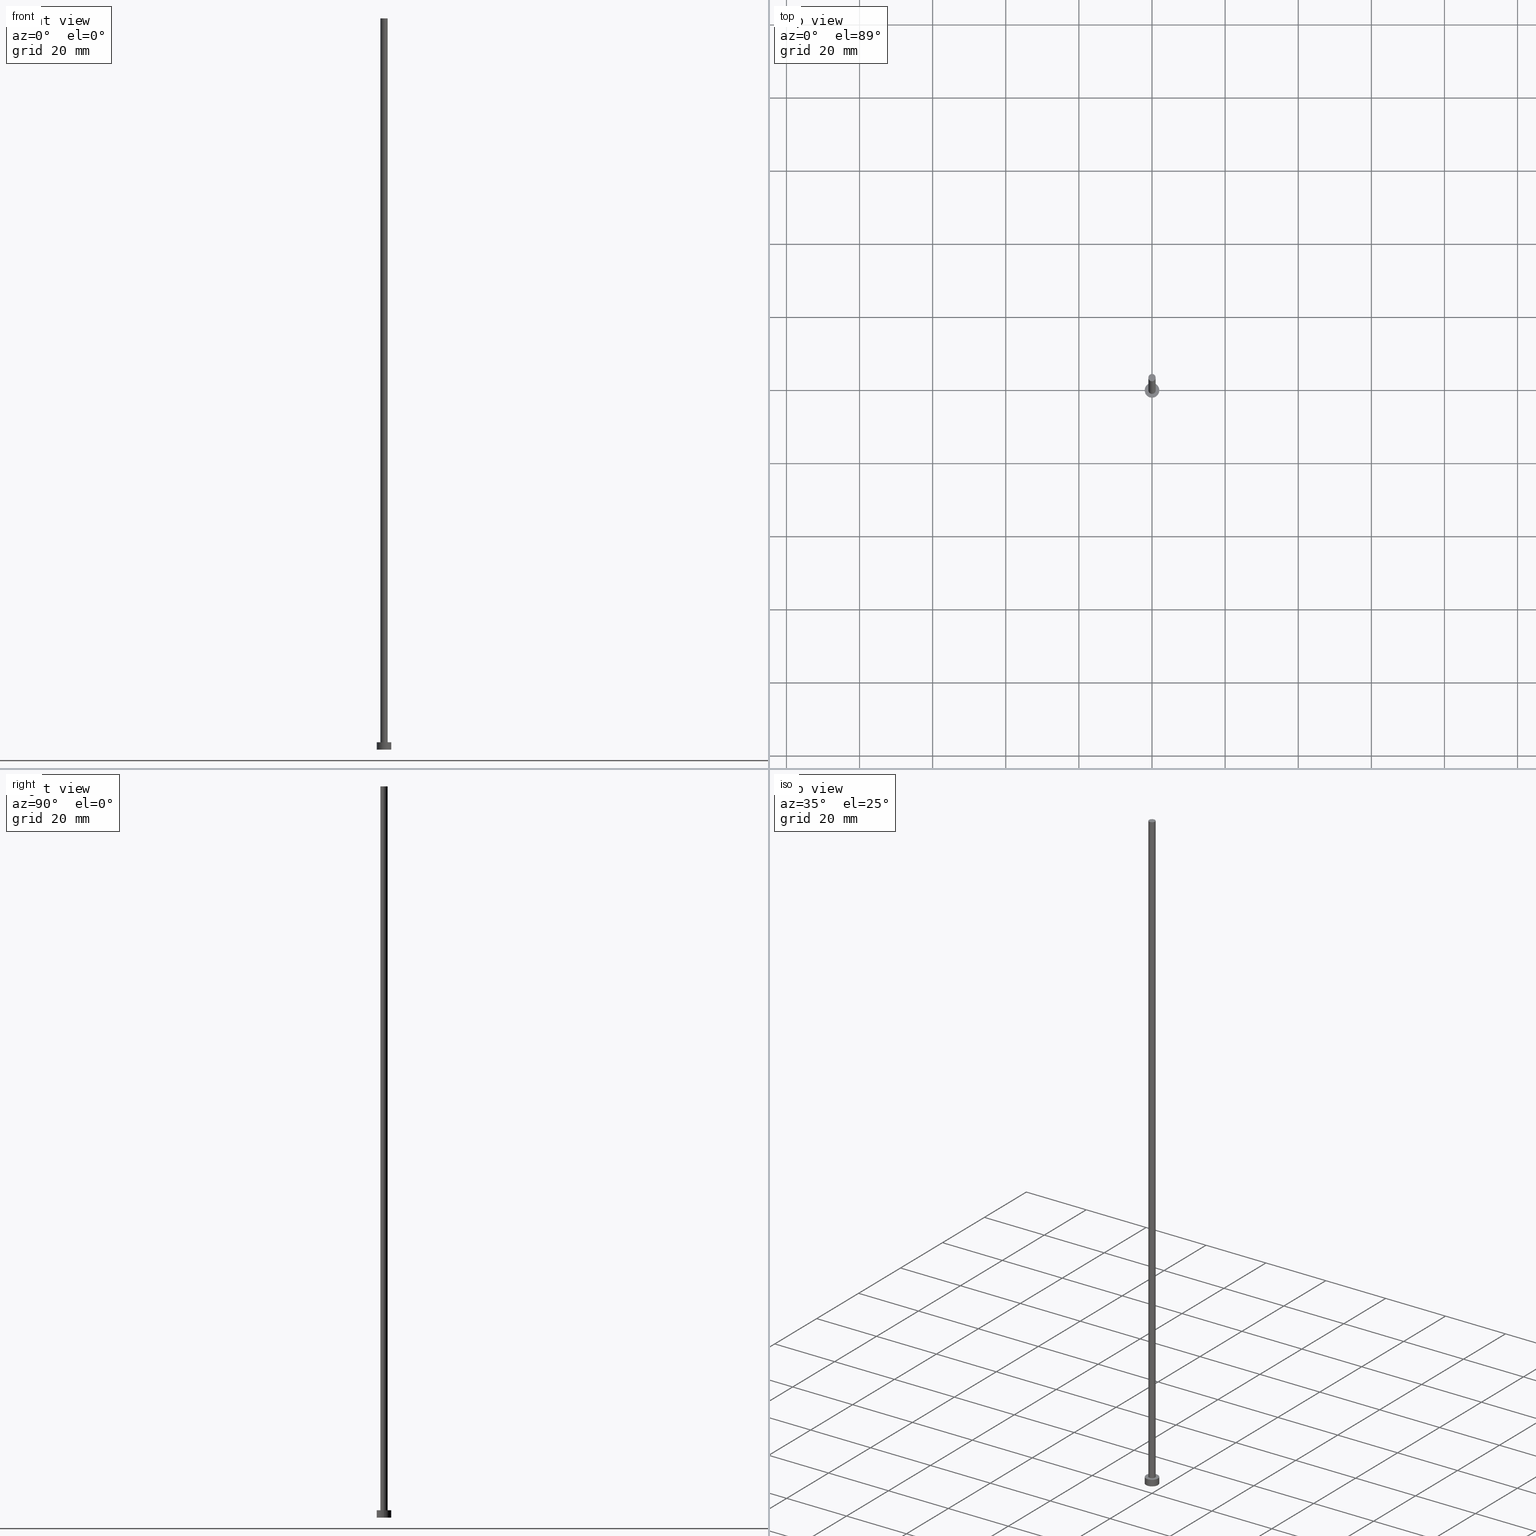
[diagram: canonical four-view strip — front | top / right | iso, engineering-drawing reading convention]
A machine part, canonical four-view strip (front | top / right | iso — engineering-drawing reading convention). The complete STEP part file that produces these views, byte-faithful:
ISO-10303-21;
HEADER;
FILE_DESCRIPTION (( 'STEP AP203' ),
    '1' );
FILE_NAME ('7f0b.STEP',
    '2023-02-12T12:52:57',
    ( '' ),
    ( '' ),
    'SwSTEP 2.0',
    'SolidWorks 2019',
    '' );
FILE_SCHEMA (( 'CONFIG_CONTROL_DESIGN' ));
ENDSEC;

DATA;
#1 = ADVANCED_FACE ( 'NONE', ( #46 ), #148, .T. ) ;
#2 = LINE ( 'NONE', #85, #19 ) ;
#3 = ORIENTED_EDGE ( 'NONE', *, *, #21, .T. ) ;
#4 = CARTESIAN_POINT ( 'NONE',  ( 0.000000000000000000, 0.000000000000000000, 0.000000000000000000 ) ) ;
#5 = DIRECTION ( 'NONE',  ( 1.000000000000000000, 0.000000000000000000, 0.000000000000000000 ) ) ;
#6 = CC_DESIGN_DATE_AND_TIME_ASSIGNMENT ( #15, #234, ( #7 ) ) ;
#7 = SECURITY_CLASSIFICATION ( '', '', #102 ) ;
#8 = PRODUCT_DEFINITION_FORMATION_WITH_SPECIFIED_SOURCE ( 'LIBOVOLN�', '', #138, .NOT_KNOWN. ) ;
#9 = DIRECTION ( 'NONE',  ( 0.000000000000000000, 0.000000000000000000, 1.000000000000000000 ) ) ;
#10 = APPLICATION_PROTOCOL_DEFINITION ( 'international standard', 'config_control_design', 1994, #132 ) ;
#11 = DATE_AND_TIME ( #194, #185 ) ;
#12 = CIRCLE ( 'NONE', #140, 2.000000000000000000 ) ;
#13 = CALENDAR_DATE ( 2023, 12, 2 ) ;
#14 = ORIENTED_EDGE ( 'NONE', *, *, #61, .T. ) ;
#15 = DATE_AND_TIME ( #211, #110 ) ;
#16 = CARTESIAN_POINT ( 'NONE',  ( 0.000000000000000000, 0.000000000000000000, 200.0000000000000000 ) ) ;
#17 = COORDINATED_UNIVERSAL_TIME_OFFSET ( 1, 0, .AHEAD. ) ;
#18 = DIRECTION ( 'NONE',  ( -0.000000000000000000, -0.000000000000000000, -1.000000000000000000 ) ) ;
#19 = VECTOR ( 'NONE', #104, 1000.000000000000000 ) ;
#20 = DIRECTION ( 'NONE',  ( 1.000000000000000000, 0.000000000000000000, 0.000000000000000000 ) ) ;
#21 = EDGE_CURVE ( 'NONE', #232, #229, #30, .T. ) ;
#22 = CARTESIAN_POINT ( 'NONE',  ( 0.000000000000000000, 0.000000000000000000, 0.000000000000000000 ) ) ;
#23 = AXIS2_PLACEMENT_3D ( 'NONE', #73, #25, #108 ) ;
#24 = CLOSED_SHELL ( 'NONE', ( #47, #183, #29, #190, #114, #1, #128 ) ) ;
#25 = DIRECTION ( 'NONE',  ( 0.000000000000000000, 0.000000000000000000, 1.000000000000000000 ) ) ;
#26 = DIRECTION ( 'NONE',  ( 0.000000000000000000, 0.000000000000000000, 1.000000000000000000 ) ) ;
#27 = LINE ( 'NONE', #189, #173 ) ;
#28 = VECTOR ( 'NONE', #70, 1000.000000000000000 ) ;
#29 = ADVANCED_FACE ( 'NONE', ( #238 ), #40, .T. ) ;
#30 = CIRCLE ( 'NONE', #219, 1.000000000000000000 ) ;
#31 = FACE_BOUND ( 'NONE', #67, .T. ) ;
#32 = ORIENTED_EDGE ( 'NONE', *, *, #61, .F. ) ;
#33 = PERSON_AND_ORGANIZATION ( #53, #64 ) ;
#34 = APPROVAL ( #59, 'NEUR�EN�' ) ;
#35 = PERSON_AND_ORGANIZATION ( #53, #64 ) ;
#36 = ORIENTED_EDGE ( 'NONE', *, *, #156, .T. ) ;
#37 = DATE_AND_TIME ( #197, #213 ) ;
#38 = ORIENTED_EDGE ( 'NONE', *, *, #245, .T. ) ;
#39 = APPROVAL_DATE_TIME ( #252, #92 ) ;
#40 = CYLINDRICAL_SURFACE ( 'NONE', #214, 2.000000000000000000 ) ;
#41 = CARTESIAN_POINT ( 'NONE',  ( 0.000000000000000000, 0.000000000000000000, 2.000000000000000000 ) ) ;
#42 = AXIS2_PLACEMENT_3D ( 'NONE', #248, #228, #76 ) ;
#43 = CARTESIAN_POINT ( 'NONE',  ( 0.000000000000000000, 0.000000000000000000, 200.0000000000000000 ) ) ;
#44 = CARTESIAN_POINT ( 'NONE',  ( 0.000000000000000000, 0.000000000000000000, 2.000000000000000000 ) ) ;
#45 = PRODUCT_RELATED_PRODUCT_CATEGORY ( 'detail', '', ( #138 ) ) ;
#46 = FACE_OUTER_BOUND ( 'NONE', #163, .T. ) ;
#47 = ADVANCED_FACE ( 'NONE', ( #184 ), #147, .T. ) ;
#48 = AXIS2_PLACEMENT_3D ( 'NONE', #22, #182, #186 ) ;
#49 = AXIS2_PLACEMENT_3D ( 'NONE', #243, #69, #204 ) ;
#50 = CARTESIAN_POINT ( 'NONE',  ( -1.000000000000000000, 0.000000000000000000, 200.0000000000000000 ) ) ;
#51 = AXIS2_PLACEMENT_3D ( 'NONE', #43, #167, #221 ) ;
#52 =( GEOMETRIC_REPRESENTATION_CONTEXT ( 3 ) GLOBAL_UNCERTAINTY_ASSIGNED_CONTEXT ( ( #174 ) ) GLOBAL_UNIT_ASSIGNED_CONTEXT ( ( #93, #208, #247 ) ) REPRESENTATION_CONTEXT ( 'NONE', 'WORKASPACE' ) );
#53 = PERSON ( 'NEUR�EN�', 'NEUR�EN�', 'NEUR�EN�', ('NEUR�EN�'), ('NEUR�EN�'), ('NEUR�EN�') ) ;
#54 = ORIENTED_EDGE ( 'NONE', *, *, #212, .T. ) ;
#55 = APPROVAL_ROLE ( '' ) ;
#56 = EDGE_LOOP ( 'NONE', ( #3, #54 ) ) ;
#57 = ORIENTED_EDGE ( 'NONE', *, *, #117, .T. ) ;
#58 = CIRCLE ( 'NONE', #23, 1.000000000000000000 ) ;
#59 = APPROVAL_STATUS ( 'not_yet_approved' ) ;
#60 = CARTESIAN_POINT ( 'NONE',  ( -1.000000000000000000, 0.000000000000000000, 200.0000000000000000 ) ) ;
#61 = EDGE_CURVE ( 'NONE', #232, #142, #237, .T. ) ;
#62 = EDGE_LOOP ( 'NONE', ( #74, #100, #57, #201 ) ) ;
#63 = VECTOR ( 'NONE', #143, 1000.000000000000000 ) ;
#64 = ORGANIZATION ( 'NEUR�EN�', 'NEUR�EN�', '' ) ;
#65 = PLANE ( 'NONE',  #51 ) ;
#66 = EDGE_CURVE ( 'NONE', #142, #158, #127, .T. ) ;
#67 = EDGE_LOOP ( 'NONE', ( #139, #177 ) ) ;
#68 = CC_DESIGN_PERSON_AND_ORGANIZATION_ASSIGNMENT ( #113, #99, ( #96 ) ) ;
#69 = DIRECTION ( 'NONE',  ( 0.000000000000000000, 0.000000000000000000, 1.000000000000000000 ) ) ;
#70 = DIRECTION ( 'NONE',  ( -0.000000000000000000, -0.000000000000000000, -1.000000000000000000 ) ) ;
#71 = CC_DESIGN_PERSON_AND_ORGANIZATION_ASSIGNMENT ( #84, #253, ( #8 ) ) ;
#72 = AXIS2_PLACEMENT_3D ( 'NONE', #131, #205, #206 ) ;
#73 = CARTESIAN_POINT ( 'NONE',  ( 0.000000000000000000, 0.000000000000000000, 200.0000000000000000 ) ) ;
#74 = ORIENTED_EDGE ( 'NONE', *, *, #224, .F. ) ;
#75 = DESIGN_CONTEXT ( 'detailed design', #195, 'design' ) ;
#76 = DIRECTION ( 'NONE',  ( 1.000000000000000000, 0.000000000000000000, 0.000000000000000000 ) ) ;
#77 = DIRECTION ( 'NONE',  ( -0.000000000000000000, -0.000000000000000000, -1.000000000000000000 ) ) ;
#78 = DATE_AND_TIME ( #118, #122 ) ;
#79 = SHAPE_DEFINITION_REPRESENTATION ( #207, #217 ) ;
#80 = COORDINATED_UNIVERSAL_TIME_OFFSET ( 1, 0, .AHEAD. ) ;
#81 = EDGE_LOOP ( 'NONE', ( #123, #38, #235, #32 ) ) ;
#82 = COORDINATED_UNIVERSAL_TIME_OFFSET ( 1, 0, .AHEAD. ) ;
#83 = DIRECTION ( 'NONE',  ( -0.000000000000000000, -0.000000000000000000, -1.000000000000000000 ) ) ;
#84 = PERSON_AND_ORGANIZATION ( #53, #64 ) ;
#85 = CARTESIAN_POINT ( 'NONE',  ( -2.000000000000000000, 0.000000000000000000, 2.000000000000000000 ) ) ;
#86 = FACE_OUTER_BOUND ( 'NONE', #153, .T. ) ;
#87 = APPROVAL_PERSON_ORGANIZATION ( #116, #92, #55 ) ;
#88 = ORIENTED_EDGE ( 'NONE', *, *, #151, .T. ) ;
#89 = DIRECTION ( 'NONE',  ( 0.000000000000000000, 0.000000000000000000, 1.000000000000000000 ) ) ;
#90 = CARTESIAN_POINT ( 'NONE',  ( -2.000000000000000000, 0.000000000000000000, 0.000000000000000000 ) ) ;
#91 = AXIS2_PLACEMENT_3D ( 'NONE', #4, #154, #170 ) ;
#92 = APPROVAL ( #209, 'NEUR�EN�' ) ;
#93 =( LENGTH_UNIT ( ) NAMED_UNIT ( * ) SI_UNIT ( .MILLI., .METRE. ) );
#94 = DIRECTION ( 'NONE',  ( 1.000000000000000000, 0.000000000000000000, 0.000000000000000000 ) ) ;
#95 = APPROVAL_ROLE ( '' ) ;
#96 = PRODUCT_DEFINITION ( 'NEZN�M�', '', #8, #75 ) ;
#97 = PERSON_AND_ORGANIZATION_ROLE ( 'design_owner' ) ;
#98 = VERTEX_POINT ( 'NONE', #202 ) ;
#99 = PERSON_AND_ORGANIZATION_ROLE ( 'creator' ) ;
#100 = ORIENTED_EDGE ( 'NONE', *, *, #134, .F. ) ;
#101 = DIRECTION ( 'NONE',  ( -1.000000000000000000, 0.000000000000000000, 0.000000000000000000 ) ) ;
#102 = SECURITY_CLASSIFICATION_LEVEL ( 'unclassified' ) ;
#103 = PLANE ( 'NONE',  #48 ) ;
#104 = DIRECTION ( 'NONE',  ( -0.000000000000000000, -0.000000000000000000, -1.000000000000000000 ) ) ;
#105 = ORIENTED_EDGE ( 'NONE', *, *, #21, .F. ) ;
#106 = CC_DESIGN_SECURITY_CLASSIFICATION ( #7, ( #8 ) ) ;
#107 = PLANE ( 'NONE',  #129 ) ;
#108 = DIRECTION ( 'NONE',  ( 1.000000000000000000, 0.000000000000000000, 0.000000000000000000 ) ) ;
#109 = CARTESIAN_POINT ( 'NONE',  ( 2.000000000000000000, 2.449293598294706414E-16, 2.000000000000000000 ) ) ;
#110 = LOCAL_TIME ( 13, 52, 57.00000000000000000, #17 ) ;
#111 = CARTESIAN_POINT ( 'NONE',  ( 0.000000000000000000, 0.000000000000000000, 2.000000000000000000 ) ) ;
#112 = EDGE_LOOP ( 'NONE', ( #231, #215, #88, #242 ) ) ;
#113 = PERSON_AND_ORGANIZATION ( #53, #64 ) ;
#114 = ADVANCED_FACE ( 'NONE', ( #86 ), #103, .F. ) ;
#115 = COORDINATED_UNIVERSAL_TIME_OFFSET ( 1, 0, .AHEAD. ) ;
#116 = PERSON_AND_ORGANIZATION ( #53, #64 ) ;
#117 = EDGE_CURVE ( 'NONE', #254, #210, #2, .T. ) ;
#118 = CALENDAR_DATE ( 2023, 12, 2 ) ;
#119 = EDGE_LOOP ( 'NONE', ( #144, #36 ) ) ;
#120 = DIRECTION ( 'NONE',  ( 0.000000000000000000, 0.000000000000000000, 1.000000000000000000 ) ) ;
#121 = CIRCLE ( 'NONE', #49, 1.000000000000000000 ) ;
#122 = LOCAL_TIME ( 13, 52, 57.00000000000000000, #115 ) ;
#123 = ORIENTED_EDGE ( 'NONE', *, *, #212, .F. ) ;
#124 = CC_DESIGN_DATE_AND_TIME_ASSIGNMENT ( #78, #179, ( #96 ) ) ;
#125 = DIRECTION ( 'NONE',  ( -1.000000000000000000, 0.000000000000000000, 0.000000000000000000 ) ) ;
#126 = DIRECTION ( 'NONE',  ( 1.000000000000000000, 0.000000000000000000, 0.000000000000000000 ) ) ;
#127 = CIRCLE ( 'NONE', #250, 1.000000000000000000 ) ;
#128 = ADVANCED_FACE ( 'NONE', ( #166 ), #65, .T. ) ;
#129 = AXIS2_PLACEMENT_3D ( 'NONE', #149, #26, #191 ) ;
#130 = CARTESIAN_POINT ( 'NONE',  ( 1.000000000000000000, 1.224646799147353207E-16, 2.000000000000000000 ) ) ;
#131 = CARTESIAN_POINT ( 'NONE',  ( 0.000000000000000000, 0.000000000000000000, 2.000000000000000000 ) ) ;
#132 = APPLICATION_CONTEXT ( 'configuration controlled 3d designs of mechanical parts and assemblies' ) ;
#133 = APPROVAL_PERSON_ORGANIZATION ( #236, #34, #251 ) ;
#134 = EDGE_CURVE ( 'NONE', #254, #192, #200, .T. ) ;
#135 = CARTESIAN_POINT ( 'NONE',  ( 1.000000000000000000, 1.224646799147353207E-16, 200.0000000000000000 ) ) ;
#136 = ORIENTED_EDGE ( 'NONE', *, *, #66, .T. ) ;
#137 = PERSON_AND_ORGANIZATION_ROLE ( 'classification_officer' ) ;
#138 = PRODUCT ( '7f0b', '7f0b', '', ( #152 ) ) ;
#139 = ORIENTED_EDGE ( 'NONE', *, *, #66, .F. ) ;
#140 = AXIS2_PLACEMENT_3D ( 'NONE', #171, #9, #94 ) ;
#141 = COORDINATED_UNIVERSAL_TIME_OFFSET ( 1, 0, .AHEAD. ) ;
#142 = VERTEX_POINT ( 'NONE', #226 ) ;
#143 = DIRECTION ( 'NONE',  ( -0.000000000000000000, -0.000000000000000000, -1.000000000000000000 ) ) ;
#144 = ORIENTED_EDGE ( 'NONE', *, *, #134, .T. ) ;
#145 = CIRCLE ( 'NONE', #246, 2.000000000000000000 ) ;
#146 = CC_DESIGN_PERSON_AND_ORGANIZATION_ASSIGNMENT ( #33, #97, ( #138 ) ) ;
#147 = CYLINDRICAL_SURFACE ( 'NONE', #172, 1.000000000000000000 ) ;
#148 = CYLINDRICAL_SURFACE ( 'NONE', #233, 1.000000000000000000 ) ;
#149 = CARTESIAN_POINT ( 'NONE',  ( 0.000000000000000000, 0.000000000000000000, 2.000000000000000000 ) ) ;
#150 = CYLINDRICAL_SURFACE ( 'NONE', #72, 2.000000000000000000 ) ;
#151 = EDGE_CURVE ( 'NONE', #98, #210, #161, .T. ) ;
#152 = MECHANICAL_CONTEXT ( 'NONE', #132, 'mechanical' ) ;
#153 = EDGE_LOOP ( 'NONE', ( #218, #203 ) ) ;
#154 = DIRECTION ( 'NONE',  ( 0.000000000000000000, 0.000000000000000000, 1.000000000000000000 ) ) ;
#155 = EDGE_CURVE ( 'NONE', #158, #142, #121, .T. ) ;
#156 = EDGE_CURVE ( 'NONE', #192, #254, #145, .T. ) ;
#157 = APPROVAL_DATE_TIME ( #11, #34 ) ;
#158 = VERTEX_POINT ( 'NONE', #130 ) ;
#159 = PERSON_AND_ORGANIZATION ( #53, #64 ) ;
#160 = PERSON_AND_ORGANIZATION_ROLE ( 'design_supplier' ) ;
#161 = CIRCLE ( 'NONE', #91, 2.000000000000000000 ) ;
#162 = LOCAL_TIME ( 13, 52, 57.00000000000000000, #141 ) ;
#163 = EDGE_LOOP ( 'NONE', ( #169, #105, #14, #136 ) ) ;
#164 = DIRECTION ( 'NONE',  ( -1.000000000000000000, 0.000000000000000000, 0.000000000000000000 ) ) ;
#165 = EDGE_CURVE ( 'NONE', #210, #98, #12, .T. ) ;
#166 = FACE_OUTER_BOUND ( 'NONE', #56, .T. ) ;
#167 = DIRECTION ( 'NONE',  ( 0.000000000000000000, 0.000000000000000000, 1.000000000000000000 ) ) ;
#168 = CC_DESIGN_APPROVAL ( #92, ( #7 ) ) ;
#169 = ORIENTED_EDGE ( 'NONE', *, *, #245, .F. ) ;
#170 = DIRECTION ( 'NONE',  ( 1.000000000000000000, 0.000000000000000000, 0.000000000000000000 ) ) ;
#171 = CARTESIAN_POINT ( 'NONE',  ( 0.000000000000000000, 0.000000000000000000, 0.000000000000000000 ) ) ;
#172 = AXIS2_PLACEMENT_3D ( 'NONE', #255, #83, #164 ) ;
#173 = VECTOR ( 'NONE', #77, 1000.000000000000000 ) ;
#174 = UNCERTAINTY_MEASURE_WITH_UNIT (LENGTH_MEASURE( 1.000000000000000082E-05 ), #93, 'distance_accuracy_value', 'NONE');
#175 = DIRECTION ( 'NONE',  ( 0.000000000000000000, 0.000000000000000000, 1.000000000000000000 ) ) ;
#176 = PERSON_AND_ORGANIZATION ( #53, #64 ) ;
#177 = ORIENTED_EDGE ( 'NONE', *, *, #155, .F. ) ;
#178 = APPLICATION_PROTOCOL_DEFINITION ( 'international standard', 'config_control_design', 1994, #195 ) ;
#179 = DATE_TIME_ROLE ( 'creation_date' ) ;
#180 = CC_DESIGN_PERSON_AND_ORGANIZATION_ASSIGNMENT ( #176, #160, ( #8 ) ) ;
#181 = CARTESIAN_POINT ( 'NONE',  ( 0.000000000000000000, 0.000000000000000000, 2.000000000000000000 ) ) ;
#182 = DIRECTION ( 'NONE',  ( 0.000000000000000000, 0.000000000000000000, 1.000000000000000000 ) ) ;
#183 = ADVANCED_FACE ( 'NONE', ( #187 ), #150, .T. ) ;
#184 = FACE_OUTER_BOUND ( 'NONE', #81, .T. ) ;
#185 = LOCAL_TIME ( 13, 52, 57.00000000000000000, #80 ) ;
#186 = DIRECTION ( 'NONE',  ( 1.000000000000000000, 0.000000000000000000, -0.000000000000000000 ) ) ;
#187 = FACE_OUTER_BOUND ( 'NONE', #112, .T. ) ;
#188 = CC_DESIGN_PERSON_AND_ORGANIZATION_ASSIGNMENT ( #159, #137, ( #7 ) ) ;
#189 = CARTESIAN_POINT ( 'NONE',  ( 1.000000000000000000, 1.224646799147353207E-16, 200.0000000000000000 ) ) ;
#190 = ADVANCED_FACE ( 'NONE', ( #31, #244 ), #107, .T. ) ;
#191 = DIRECTION ( 'NONE',  ( 1.000000000000000000, 0.000000000000000000, -0.000000000000000000 ) ) ;
#192 = VERTEX_POINT ( 'NONE', #223 ) ;
#193 = APPROVAL ( #230, 'NEUR�EN�' ) ;
#194 = CALENDAR_DATE ( 2023, 12, 2 ) ;
#195 = APPLICATION_CONTEXT ( 'configuration controlled 3d designs of mechanical parts and assemblies' ) ;
#196 = APPROVAL_PERSON_ORGANIZATION ( #35, #193, #95 ) ;
#197 = CALENDAR_DATE ( 2023, 12, 2 ) ;
#198 = APPROVAL_DATE_TIME ( #37, #193 ) ;
#199 = DIRECTION ( 'NONE',  ( 0.000000000000000000, 0.000000000000000000, 1.000000000000000000 ) ) ;
#200 = CIRCLE ( 'NONE', #239, 2.000000000000000000 ) ;
#201 = ORIENTED_EDGE ( 'NONE', *, *, #165, .T. ) ;
#202 = CARTESIAN_POINT ( 'NONE',  ( 2.000000000000000000, 2.449293598294706414E-16, 0.000000000000000000 ) ) ;
#203 = ORIENTED_EDGE ( 'NONE', *, *, #151, .F. ) ;
#204 = DIRECTION ( 'NONE',  ( 1.000000000000000000, 0.000000000000000000, 0.000000000000000000 ) ) ;
#205 = DIRECTION ( 'NONE',  ( -0.000000000000000000, -0.000000000000000000, -1.000000000000000000 ) ) ;
#206 = DIRECTION ( 'NONE',  ( -1.000000000000000000, 0.000000000000000000, 0.000000000000000000 ) ) ;
#207 = PRODUCT_DEFINITION_SHAPE ( 'NONE', 'NONE',  #96 ) ;
#208 =( NAMED_UNIT ( * ) PLANE_ANGLE_UNIT ( ) SI_UNIT ( $, .RADIAN. ) );
#209 = APPROVAL_STATUS ( 'not_yet_approved' ) ;
#210 = VERTEX_POINT ( 'NONE', #90 ) ;
#211 = CALENDAR_DATE ( 2023, 12, 2 ) ;
#212 = EDGE_CURVE ( 'NONE', #229, #232, #58, .T. ) ;
#213 = LOCAL_TIME ( 13, 52, 57.00000000000000000, #82 ) ;
#214 = AXIS2_PLACEMENT_3D ( 'NONE', #181, #18, #101 ) ;
#215 = ORIENTED_EDGE ( 'NONE', *, *, #224, .T. ) ;
#216 = DIRECTION ( 'NONE',  ( 1.000000000000000000, 0.000000000000000000, 0.000000000000000000 ) ) ;
#217 = ADVANCED_BREP_SHAPE_REPRESENTATION ( '7f0b', ( #222, #42 ), #52 ) ;
#218 = ORIENTED_EDGE ( 'NONE', *, *, #165, .F. ) ;
#219 = AXIS2_PLACEMENT_3D ( 'NONE', #220, #199, #216 ) ;
#220 = CARTESIAN_POINT ( 'NONE',  ( 0.000000000000000000, 0.000000000000000000, 200.0000000000000000 ) ) ;
#221 = DIRECTION ( 'NONE',  ( 1.000000000000000000, 0.000000000000000000, -0.000000000000000000 ) ) ;
#222 = MANIFOLD_SOLID_BREP ( 'P�idat vysunut�m3', #24 ) ;
#223 = CARTESIAN_POINT ( 'NONE',  ( 2.000000000000000000, 2.449293598294706414E-16, 2.000000000000000000 ) ) ;
#224 = EDGE_CURVE ( 'NONE', #192, #98, #249, .T. ) ;
#225 = CARTESIAN_POINT ( 'NONE',  ( -2.000000000000000000, 0.000000000000000000, 2.000000000000000000 ) ) ;
#226 = CARTESIAN_POINT ( 'NONE',  ( -1.000000000000000000, 0.000000000000000000, 2.000000000000000000 ) ) ;
#227 = CC_DESIGN_APPROVAL ( #34, ( #96 ) ) ;
#228 = DIRECTION ( 'NONE',  ( 0.000000000000000000, 0.000000000000000000, 1.000000000000000000 ) ) ;
#229 = VERTEX_POINT ( 'NONE', #135 ) ;
#230 = APPROVAL_STATUS ( 'not_yet_approved' ) ;
#231 = ORIENTED_EDGE ( 'NONE', *, *, #156, .F. ) ;
#232 = VERTEX_POINT ( 'NONE', #50 ) ;
#233 = AXIS2_PLACEMENT_3D ( 'NONE', #16, #241, #125 ) ;
#234 = DATE_TIME_ROLE ( 'classification_date' ) ;
#235 = ORIENTED_EDGE ( 'NONE', *, *, #155, .T. ) ;
#236 = PERSON_AND_ORGANIZATION ( #53, #64 ) ;
#237 = LINE ( 'NONE', #60, #63 ) ;
#238 = FACE_OUTER_BOUND ( 'NONE', #62, .T. ) ;
#239 = AXIS2_PLACEMENT_3D ( 'NONE', #44, #89, #126 ) ;
#240 = CC_DESIGN_APPROVAL ( #193, ( #8 ) ) ;
#241 = DIRECTION ( 'NONE',  ( -0.000000000000000000, -0.000000000000000000, -1.000000000000000000 ) ) ;
#242 = ORIENTED_EDGE ( 'NONE', *, *, #117, .F. ) ;
#243 = CARTESIAN_POINT ( 'NONE',  ( 0.000000000000000000, 0.000000000000000000, 2.000000000000000000 ) ) ;
#244 = FACE_OUTER_BOUND ( 'NONE', #119, .T. ) ;
#245 = EDGE_CURVE ( 'NONE', #229, #158, #27, .T. ) ;
#246 = AXIS2_PLACEMENT_3D ( 'NONE', #111, #175, #5 ) ;
#247 =( NAMED_UNIT ( * ) SI_UNIT ( $, .STERADIAN. ) SOLID_ANGLE_UNIT ( ) );
#248 = CARTESIAN_POINT ( 'NONE',  ( 0.000000000000000000, 0.000000000000000000, 0.000000000000000000 ) ) ;
#249 = LINE ( 'NONE', #109, #28 ) ;
#250 = AXIS2_PLACEMENT_3D ( 'NONE', #41, #120, #20 ) ;
#251 = APPROVAL_ROLE ( '' ) ;
#252 = DATE_AND_TIME ( #13, #162 ) ;
#253 = PERSON_AND_ORGANIZATION_ROLE ( 'creator' ) ;
#254 = VERTEX_POINT ( 'NONE', #225 ) ;
#255 = CARTESIAN_POINT ( 'NONE',  ( 0.000000000000000000, 0.000000000000000000, 200.0000000000000000 ) ) ;
ENDSEC;
END-ISO-10303-21;
